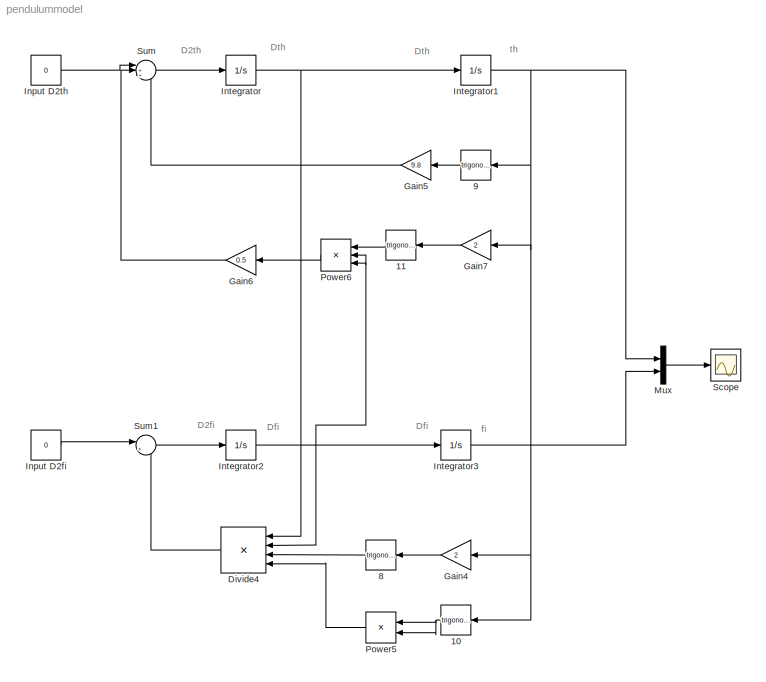
MODEL pendulummodel
KIND model
BLOCK [Trigonometry]  10
  Ports = [1, 1]
  SID = 72
BLOCK [Trigonometry]  11
  Ports = [1, 1]
  SID = 79
BLOCK [Trigonometry]  8
  Ports = [1, 1]
  SID = 68
BLOCK [Trigonometry]  9
  Ports = [1, 1]
  SID = 74
BLOCK [Product] Divide4
  InputSameDT = off
  Inputs = ***/
  OutDataType = fixdt(1, 16)
  OutDataTypeMode = Inherit via internal rule
  OutDataTypeStr = Inherit: Inherit via internal rule
  OutScaling = 2^-10
  Ports = [4, 1]
  RndMeth = Floor
  SID = 70
  SaturateOnIntegerOverflow = off
BLOCK [Gain] Gain4
  Gain = 2
  OutDataType = fixdt(1, 16)
  OutDataTypeMode = Inherit via internal rule
  OutDataTypeStr = Inherit: Inherit via internal rule
  OutScaling = 2^0
  ParamDataTypeStr = Inherit: Inherit via internal rule
  ParameterDataType = fixdt(1, 16)
  ParameterDataTypeMode = Inherit via internal rule
  ParameterScaling = 2^0
  SID = 69
  SaturateOnIntegerOverflow = off
BLOCK [Gain] Gain5
  Gain = 9.8
  OutDataType = fixdt(1, 16)
  OutDataTypeMode = Inherit via internal rule
  OutDataTypeStr = Inherit: Inherit via internal rule
  OutScaling = 2^0
  ParamDataTypeStr = Inherit: Inherit via internal rule
  ParameterDataType = fixdt(1, 16)
  ParameterDataTypeMode = Inherit via internal rule
  ParameterScaling = 2^0
  SID = 75
  SaturateOnIntegerOverflow = off
BLOCK [Gain] Gain6
  Gain = 0.5
  OutDataType = fixdt(1, 16)
  OutDataTypeMode = Inherit via internal rule
  OutDataTypeStr = Inherit: Inherit via internal rule
  OutScaling = 2^0
  ParamDataTypeStr = Inherit: Inherit via internal rule
  ParameterDataType = fixdt(1, 16)
  ParameterDataTypeMode = Inherit via internal rule
  ParameterScaling = 2^0
  SID = 78
  SaturateOnIntegerOverflow = off
BLOCK [Gain] Gain7
  Gain = 2
  OutDataType = fixdt(1, 16)
  OutDataTypeMode = Inherit via internal rule
  OutDataTypeStr = Inherit: Inherit via internal rule
  OutScaling = 2^0
  ParamDataTypeStr = Inherit: Inherit via internal rule
  ParameterDataType = fixdt(1, 16)
  ParameterDataTypeMode = Inherit via internal rule
  ParameterScaling = 2^0
  SID = 80
  SaturateOnIntegerOverflow = off
BLOCK [Constant] Input D2fi
  OutDataType = fixdt(1, 16)
  OutScaling = 2^0
  SID = 2
  Value = 0
BLOCK [Constant] Input D2th
  OutDataType = fixdt(1, 16)
  OutScaling = 2^0
  SID = 1
  Value = 0
BLOCK [Integrator] Integrator
  InitialCondition = Dth_0
  Ports = [1, 1]
  SID = 4
BLOCK [Integrator] Integrator1
  InitialCondition = th_0
  Ports = [1, 1]
  SID = 5
BLOCK [Integrator] Integrator2
  InitialCondition = Dfi_0
  Ports = [1, 1]
  SID = 7
BLOCK [Integrator] Integrator3
  InitialCondition = fi_0
  Ports = [1, 1]
  SID = 8
BLOCK [Mux] Mux
  DisplayOption = bar
  Inputs = 2
  Ports = [2, 1]
  SID = 39
BLOCK [Product] Power5
  InputSameDT = off
  OutDataType = fixdt(1, 16)
  OutDataTypeMode = Inherit via internal rule
  OutDataTypeStr = Inherit: Inherit via internal rule
  OutScaling = 2^0
  Ports = [2, 1]
  SID = 73
  SaturateOnIntegerOverflow = off
BLOCK [Product] Power6
  InputSameDT = off
  Inputs = 3
  OutDataType = fixdt(1, 16)
  OutDataTypeMode = Inherit via internal rule
  OutDataTypeStr = Inherit: Inherit via internal rule
  OutScaling = 2^0
  Ports = [3, 1]
  SID = 77
  SaturateOnIntegerOverflow = off
BLOCK [Scope] Scope
  DataFormat = StructureWithTime
  Floating = off
  LimitDataPoints = off
  NumInputPorts = 1
  Ports = [1]
  SID = 40
  SampleTime = 0
  SaveName = Angles
  SaveToWorkspace = on
  YMax = 12000
  YMin = -9000
  ZoomMode = xonly
BLOCK [Sum] Sum
  IconShape = round
  InputSameDT = off
  Inputs = |++-
  OutDataType = fixdt(1, 16)
  OutDataTypeMode = Inherit via internal rule
  OutDataTypeStr = Inherit: Inherit via internal rule
  OutScaling = 2^0
  Ports = [3, 1]
  SID = 6
  SaturateOnIntegerOverflow = off
BLOCK [Sum] Sum1
  IconShape = round
  InputSameDT = off
  Inputs = |+-
  OutDataType = fixdt(1, 16)
  OutDataTypeMode = Inherit via internal rule
  OutDataTypeStr = Inherit: Inherit via internal rule
  OutScaling = 2^0
  Ports = [2, 1]
  SID = 67
  SaturateOnIntegerOverflow = off
ANNOTATION (root): D2fi
ANNOTATION (root): D2th
ANNOTATION (root): Dfi
ANNOTATION (root): Dth
ANNOTATION (root): fi
ANNOTATION (root): th
NET  10:1 -> Power5:1, Power5:2
LINE  11:1 -> Power6:1
LINE  8:1 -> Divide4:3
LINE  9:1 -> Gain5:1
LINE Divide4:1 -> Sum1:2
LINE Gain4:1 ->  8:1
LINE Gain5:1 -> Sum:3
LINE Gain6:1 -> Sum:2
LINE Gain7:1 ->  11:1
LINE Input D2fi:1 -> Sum1:1
LINE Input D2th:1 -> Sum:1
NET Integrator1:1 ->  10:1,  9:1, Gain4:1, Gain7:1, Mux:1
NET Integrator2:1 -> Divide4:2, Integrator3:1, Power6:2, Power6:3
LINE Integrator3:1 -> Mux:2
NET Integrator:1 -> Divide4:1, Integrator1:1
LINE Mux:1 -> Scope:1
LINE Power5:1 -> Divide4:4
LINE Power6:1 -> Gain6:1
LINE Sum1:1 -> Integrator2:1
LINE Sum:1 -> Integrator:1
note: NET lines group one-source signal fan-out (src -> all destinations, sorted); 1:1 wires keep LINE
